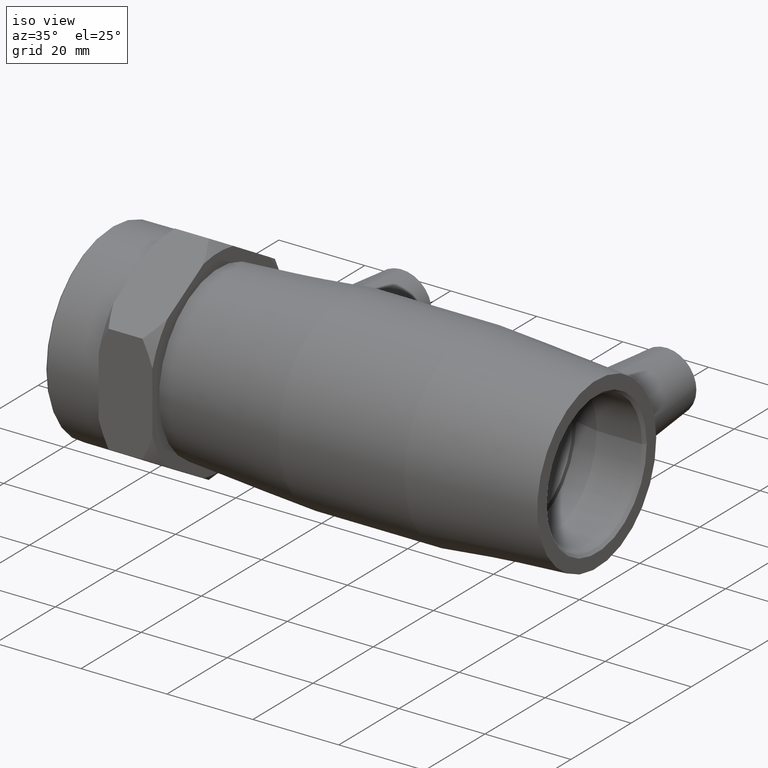
[diagram: clean part render]
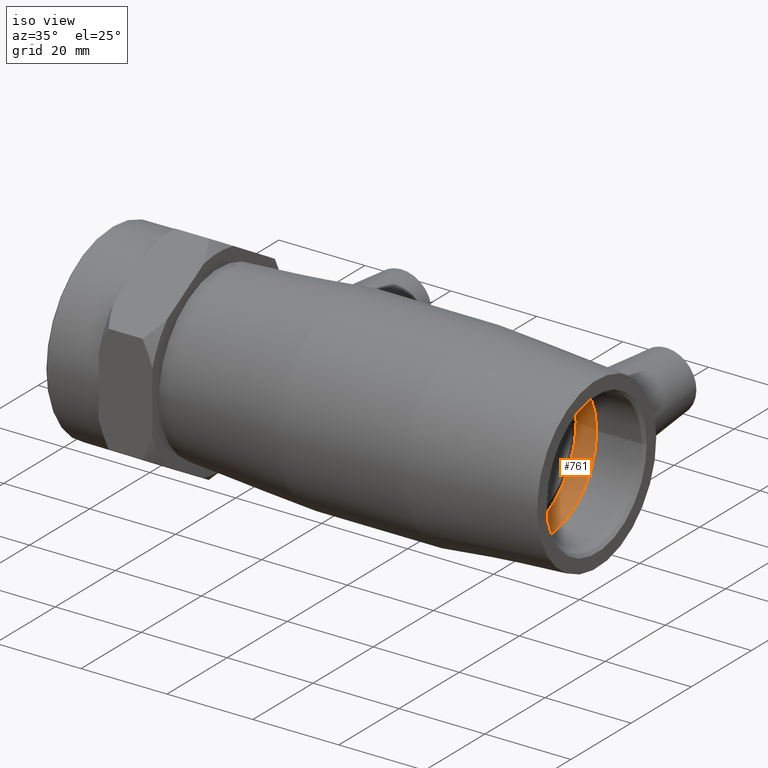
[diagram: same view with one face highlighted and labeled with its STEP entity id]
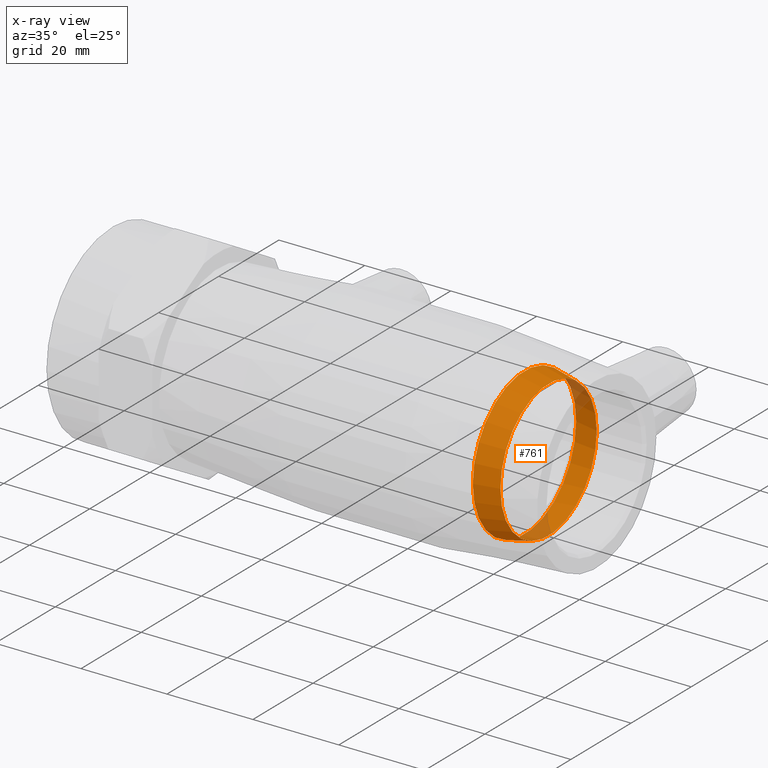
[diagram: x-ray of the same camera — body ghosted, the highlighted face saturated]
A machine part, iso view. The second image highlights one B-rep face of the part: STEP entity #761.
The next image is the same camera in x-ray: the body ghosted, the highlighted face saturated — about 9% of this face is hidden behind the body in this view.
In plain terms, the highlighted conical surface has half-angle 12 deg.
Its self-contained STEP definition (entity closure, byte-faithful):
#147=FACE_BOUND('',#281,.T.);
#202=FACE_OUTER_BOUND('',#280,.T.);
#280=EDGE_LOOP('',(#681));
#281=EDGE_LOOP('',(#682));
#294=CIRCLE('',#774,16.);
#333=CIRCLE('',#860,17.1903167453521);
#339=VERTEX_POINT('',#1101);
#404=VERTEX_POINT('',#1416);
#410=EDGE_CURVE('',#339,#339,#294,.T.);
#499=EDGE_CURVE('',#404,#404,#333,.T.);
#681=ORIENTED_EDGE('',*,*,#499,.F.);
#682=ORIENTED_EDGE('',*,*,#410,.T.);
#710=CONICAL_SURFACE('',#859,16.5951583726761,12.);
#761=ADVANCED_FACE('',(#202,#147),#710,.F.);
#774=AXIS2_PLACEMENT_3D('',#1102,#881,#882);
#859=AXIS2_PLACEMENT_3D('',#1415,#1075,#1076);
#860=AXIS2_PLACEMENT_3D('',#1417,#1077,#1078);
#881=DIRECTION('center_axis',(1.,0.,0.));
#882=DIRECTION('ref_axis',(0.,0.,-1.));
#1075=DIRECTION('center_axis',(-1.,0.,0.));
#1076=DIRECTION('ref_axis',(0.,1.,0.));
#1077=DIRECTION('center_axis',(1.,0.,0.));
#1078=DIRECTION('ref_axis',(0.,0.,-1.));
#1101=CARTESIAN_POINT('',(32.8,16.,0.));
#1102=CARTESIAN_POINT('Origin',(32.8,0.,0.));
#1415=CARTESIAN_POINT('Origin',(30.,0.,0.));
#1416=CARTESIAN_POINT('',(27.2,17.1903167453521,0.));
#1417=CARTESIAN_POINT('Origin',(27.2,0.,0.));